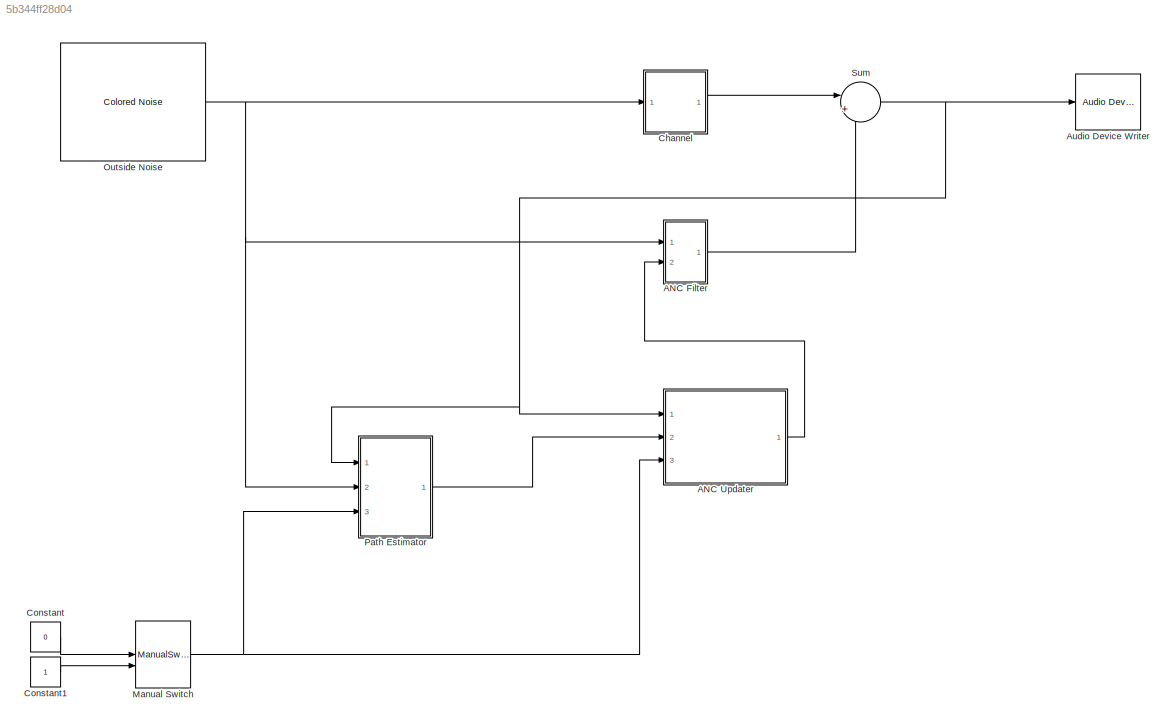
MODEL slx_5b344ff28d04
KIND model
CONFIG AbsTol = auto
CONFIG EnableMultiTasking = off
CONFIG FixedStep = auto
CONFIG MaxStep = auto
CONFIG MinStep = auto
CONFIG RelTol = 1e-3
CONFIG SampleTimeConstraint = Unconstrained
CONFIG SolverName = VariableStepAuto
CONFIG StartTime = 0.0
CONFIG StopTime = 10.0
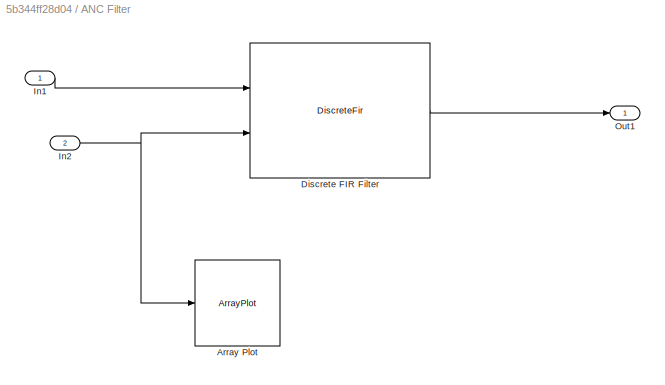
BLOCK [SubSystem] ANC Filter
  Ports = [2, 1]
  RequestExecContextInheritance = off
BLOCK [ArrayPlot] ANC Filter/Array Plot
  Ports = [1]
  ScopeSpecificationString = dsp.scopes.ArrayPlotBlockSpecification('CurrentConfiguration', extmgr.ConfigurationSet(extmgr.Configuration('Core','General UI',true),extmgr.Configuration('Core','Source UI',true),extmgr.Configuration('Sources','WiredSimulink',true),extmgr.Configuration('Visuals','Array Plot',true,'DisplayPropertyDefaults',struct('MinYLimReal','-1.2485','MaxYLimReal','1.24864','YLabelReal','Amplitude','MinYLimMag'...<+1368ch>
BLOCK [DiscreteFir] ANC Filter/Discrete FIR Filter
  CoefSource = Input port
  InputPortMap = u0,u1
  InputProcessing = Columns as channels (frame based)
  OutputPortMap = o0
  Ports = [2, 1]
BLOCK [Inport] ANC Filter/In1
BLOCK [Inport] ANC Filter/In2
  Port = 2
BLOCK [Outport] ANC Filter/Out1
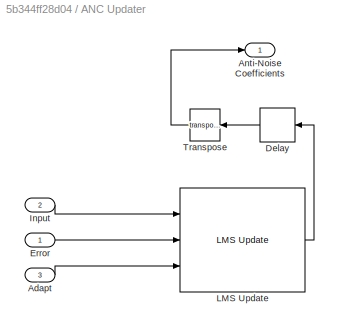
BLOCK [SubSystem] ANC Updater
  Ports = [3, 1]
  RequestExecContextInheritance = off
BLOCK [Inport] ANC Updater/Adapt
  Port = 3
BLOCK [Outport] ANC Updater/Anti-Noise Coefficients
BLOCK [Delay] ANC Updater/Delay
  DelayLength = 1
  InitialCondition = 0
  InputPortMap = u0
  Ports = [1, 1]
BLOCK [Inport] ANC Updater/Error
BLOCK [Inport] ANC Updater/Input
  Port = 2
BLOCK [Reference] ANC Updater/LMS Update  REF=dspadpt3/LMS Update
  Ports = [3, 1]
  SourceBlock = dspadpt3/LMS Update
  SourceProductBaseCode = DS
  SourceType = dsp.private.LMSUpdate
BLOCK [Math] ANC Updater/Transpose
  Operator = transpose
  Ports = [1, 1]
BLOCK [Reference] Audio Device Writer  REF=dspsnks4/Audio Device
Writer
  Ports = [1]
  SourceBlock = dspsnks4/Audio Device\nWriter
  SourceProductName = DSP System Toolbox
  SourceType = Audio Device Writer
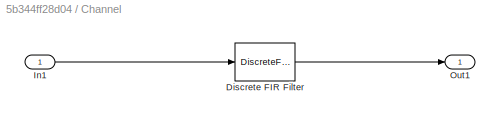
BLOCK [SubSystem] Channel
  Ports = [1, 1]
  RequestExecContextInheritance = off
BLOCK [DiscreteFir] Channel/Discrete FIR Filter
  Coefficients = [0.5 1 -0.3 0.3 0.5 -1 -0.8]
  InputPortMap = u0
  InputProcessing = Columns as channels (frame based)
  OutputPortMap = o0
  Ports = [1, 1]
BLOCK [Inport] Channel/In1
BLOCK [Outport] Channel/Out1
BLOCK [Constant] Constant
  Value = 0
BLOCK [Constant] Constant1
BLOCK [ManualSwitch] Manual Switch
  CurrentSetting = 0
BLOCK [Reference] Outside Noise  REF=dspsrcs4/Colored Noise
  Ports = [0, 1]
  SourceBlock = dspsrcs4/Colored Noise
  SourceProductName = DSP System Toolbox
  SourceType = dsp.simulink.ColoredNoise
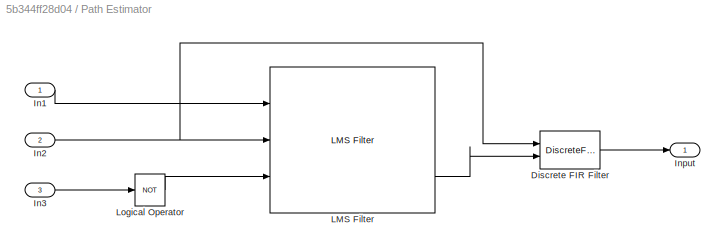
BLOCK [SubSystem] Path Estimator
  Ports = [3, 1]
  RequestExecContextInheritance = off
BLOCK [DiscreteFir] Path Estimator/Discrete FIR Filter
  CoefSource = Input port
  InputPortMap = u0,u1
  InputProcessing = Columns as channels (frame based)
  OutputPortMap = o0
  Ports = [2, 1]
BLOCK [Inport] Path Estimator/In1
BLOCK [Inport] Path Estimator/In2
  Port = 2
BLOCK [Inport] Path Estimator/In3
  Port = 3
BLOCK [Outport] Path Estimator/Input
BLOCK [Reference] Path Estimator/LMS Filter  REF=dspadpt3/LMS Filter
  Ports = [3, 3]
  SourceBlock = dspadpt3/LMS Filter
  SourceProductName = DSP System Toolbox
  SourceType = LMS Filter
BLOCK [Logic] Path Estimator/Logical Operator
  AllPortsSameDT = off
  Operator = NOT
  OutDataTypeStr = boolean
  Ports = [1, 1]
BLOCK [Sum] Sum
  Inputs = |+-
  Ports = [2, 1]
LINE ANC Filter/Discrete FIR Filter:1 -> ANC Filter/Out1:1
LINE ANC Filter/In1:1 -> ANC Filter/Discrete FIR Filter:1
NET ANC Filter/In2:1 -> ANC Filter/Array Plot:1, ANC Filter/Discrete FIR Filter:2
LINE ANC Filter:1 -> Sum:2
LINE ANC Updater/Adapt:1 -> ANC Updater/LMS Update:3
LINE ANC Updater/Delay:1 -> ANC Updater/Transpose:1
LINE ANC Updater/Error:1 -> ANC Updater/LMS Update:2
LINE ANC Updater/Input:1 -> ANC Updater/LMS Update:1
LINE ANC Updater/LMS Update:1 -> ANC Updater/Delay:1
LINE ANC Updater/Transpose:1 -> ANC Updater/Anti-Noise Coefficients:1
LINE ANC Updater:1 -> ANC Filter:2
LINE Channel/Discrete FIR Filter:1 -> Channel/Out1:1
LINE Channel/In1:1 -> Channel/Discrete FIR Filter:1
LINE Channel:1 -> Sum:1
LINE Constant1:1 -> Manual Switch:2
LINE Constant:1 -> Manual Switch:1
NET Manual Switch:1 -> ANC Updater:3, Path Estimator:3
NET Outside Noise:1 -> ANC Filter:1, Channel:1, Path Estimator:2
LINE Path Estimator/Discrete FIR Filter:1 -> Path Estimator/Input:1
LINE Path Estimator/In1:1 -> Path Estimator/LMS Filter:1
NET Path Estimator/In2:1 -> Path Estimator/Discrete FIR Filter:1, Path Estimator/LMS Filter:2
LINE Path Estimator/In3:1 -> Path Estimator/Logical Operator:1
LINE Path Estimator/LMS Filter:3 -> Path Estimator/Discrete FIR Filter:2
LINE Path Estimator/Logical Operator:1 -> Path Estimator/LMS Filter:3
LINE Path Estimator:1 -> ANC Updater:2
NET Sum:1 -> ANC Updater:1, Audio Device Writer:1, Path Estimator:1
note: NET lines group one-source signal fan-out (src -> all destinations, sorted); 1:1 wires keep LINE
